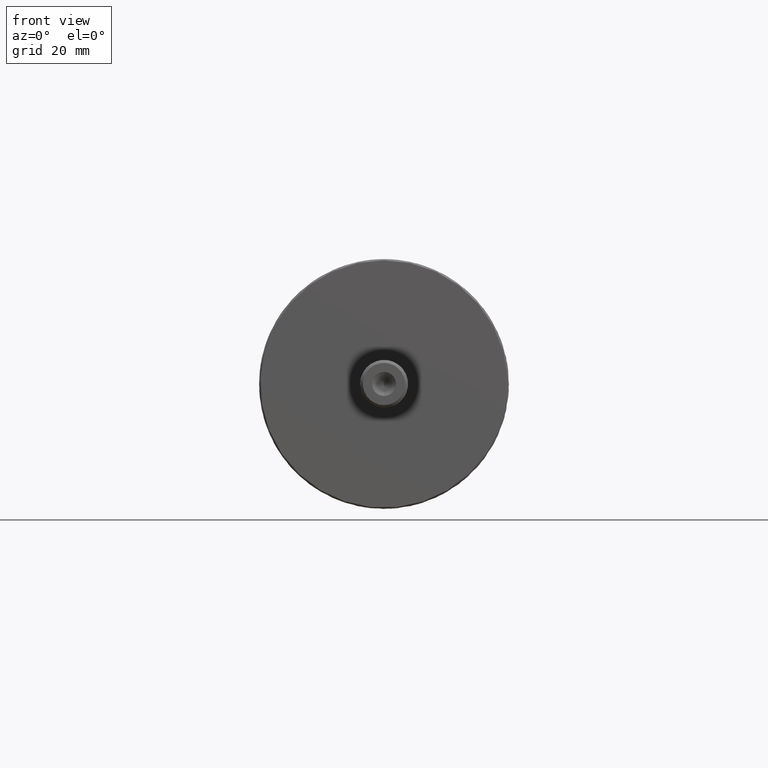
[diagram: clean part render]
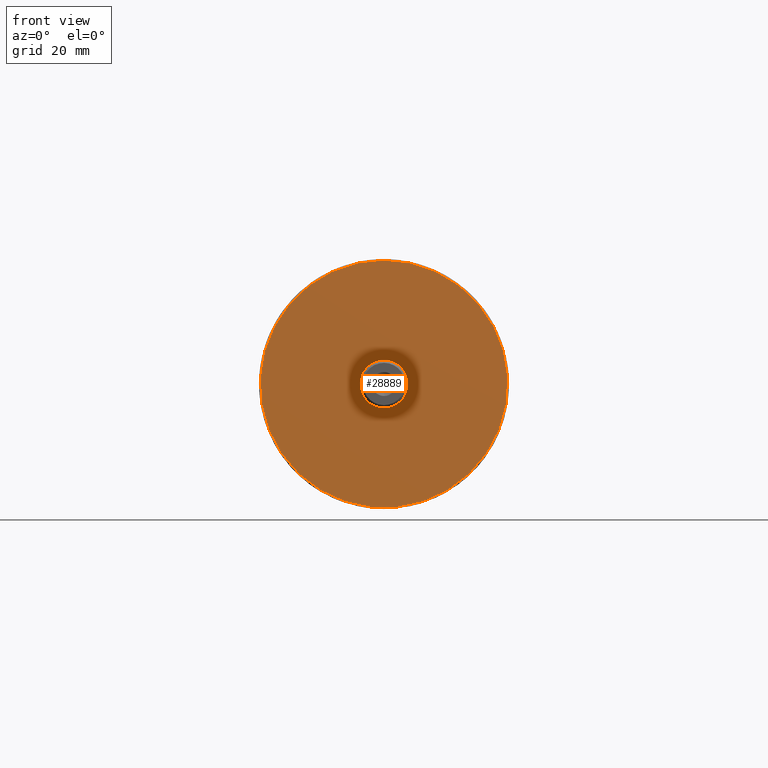
[diagram: same view with one face highlighted and labeled with its STEP entity id]
A machine part, front view. The second image highlights one B-rep face of the part: STEP entity #28889.
In plain terms, the highlighted planar face has unit normal (-0, -1, -0).
Its self-contained STEP definition (entity closure, byte-faithful):
#1380 = EDGE_CURVE ( 'NONE', #34248, #34248, #28738, .T. ) ;
#1697 = DIRECTION ( 'NONE',  ( 0.000000000000000000, -6.842277657835960082E-48, 1.000000000000000000 ) ) ;
#2008 = AXIS2_PLACEMENT_3D ( 'NONE', #14827, #17517, #20081 ) ;
#2505 = AXIS2_PLACEMENT_3D ( 'NONE', #6686, #6811, #11773 ) ;
#4293 = CARTESIAN_POINT ( 'NONE',  ( 0.000000000000000000, 30.00000000000000000, 0.000000000000000000 ) ) ;
#4866 = CIRCLE ( 'NONE', #2505, 4.750000000000032863 ) ;
#6686 = CARTESIAN_POINT ( 'NONE',  ( 0.000000000000000000, 30.00000000000000000, 0.000000000000000000 ) ) ;
#6811 = DIRECTION ( 'NONE',  ( -2.630770061871633432E-48, -1.000000000000000000, 6.842277657836020854E-48 ) ) ;
#7700 = EDGE_CURVE ( 'NONE', #18055, #18055, #4866, .T. ) ;
#10423 = ORIENTED_EDGE ( 'NONE', *, *, #1380, .T. ) ;
#10484 = EDGE_LOOP ( 'NONE', ( #10423 ) ) ;
#10508 = CARTESIAN_POINT ( 'NONE',  ( 0.000000000000000000, 30.00000000000000000, 25.75000000000020961 ) ) ;
#11773 = DIRECTION ( 'NONE',  ( 0.000000000000000000, 0.000000000000000000, 1.000000000000000000 ) ) ;
#13565 = FACE_BOUND ( 'NONE', #18940, .T. ) ;
#14827 = CARTESIAN_POINT ( 'NONE',  ( 0.000000000000000000, 30.00000000000000000, 0.000000000000000000 ) ) ;
#14940 = DIRECTION ( 'NONE',  ( 2.630770061871633432E-48, 1.000000000000000000, 6.842277657835960082E-48 ) ) ;
#15178 = ORIENTED_EDGE ( 'NONE', *, *, #7700, .T. ) ;
#16364 = AXIS2_PLACEMENT_3D ( 'NONE', #4293, #14940, #1697 ) ;
#17517 = DIRECTION ( 'NONE',  ( 2.630770061871633432E-48, 1.000000000000000000, -6.842277657836020854E-48 ) ) ;
#17755 = PLANE ( 'NONE',  #16364 ) ;
#18055 = VERTEX_POINT ( 'NONE', #23886 ) ;
#18940 = EDGE_LOOP ( 'NONE', ( #15178 ) ) ;
#20081 = DIRECTION ( 'NONE',  ( 0.000000000000000000, 0.000000000000000000, 1.000000000000000000 ) ) ;
#23886 = CARTESIAN_POINT ( 'NONE',  ( 0.000000000000000000, 30.00000000000000000, 4.750000000000032863 ) ) ;
#26525 = FACE_OUTER_BOUND ( 'NONE', #10484, .T. ) ;
#28738 = CIRCLE ( 'NONE', #2008, 25.75000000000020961 ) ;
#28889 = ADVANCED_FACE ( 'NONE', ( #26525, #13565 ), #17755, .T. ) ;
#34248 = VERTEX_POINT ( 'NONE', #10508 ) ;